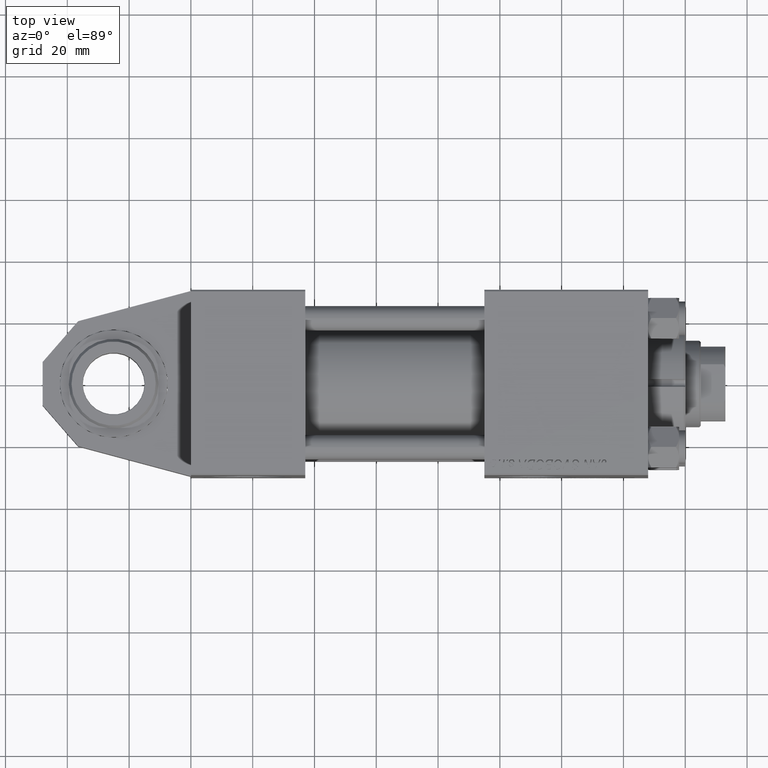
[diagram: clean part render]
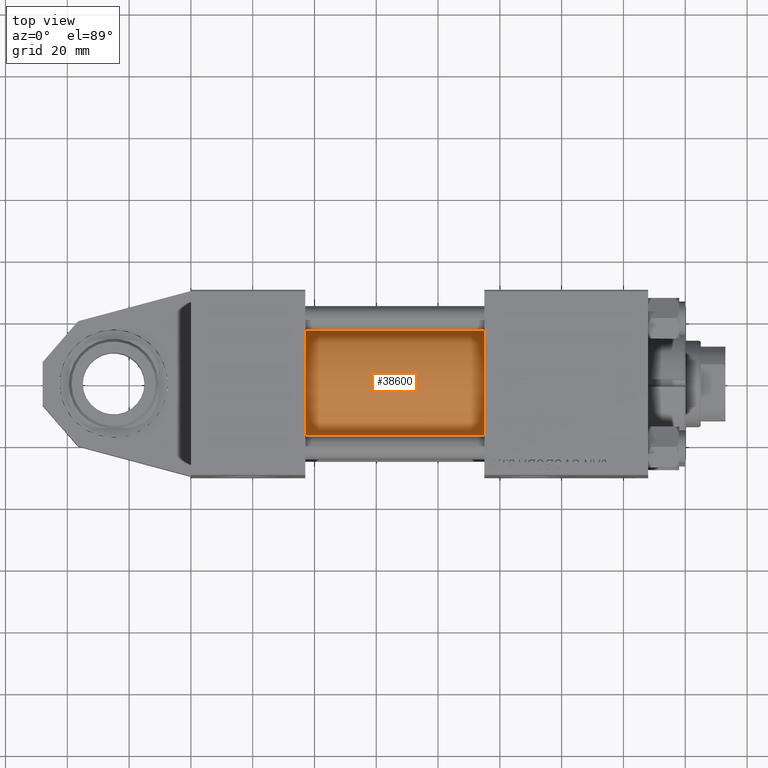
[diagram: same view with one face highlighted and labeled with its STEP entity id]
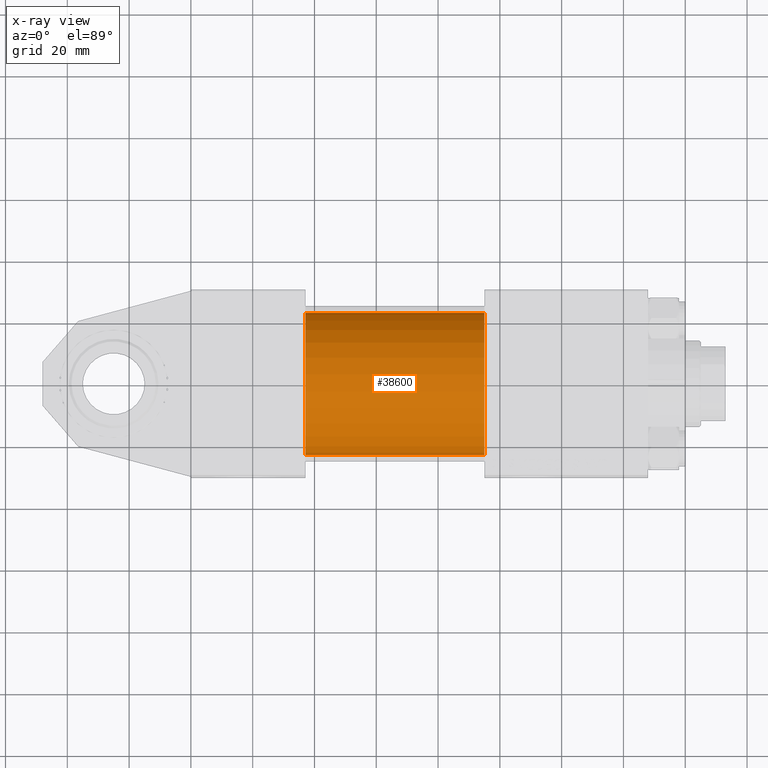
[diagram: x-ray of the same camera — body ghosted, the highlighted face saturated]
A machine part, top view. The second image highlights one B-rep face of the part: STEP entity #38600.
The next image is the same camera in x-ray: the body ghosted, the highlighted face saturated — about 0% of this face is hidden behind the body in this view.
In plain terms, the highlighted cylindrical surface (partial cylindrical patch) has radius 23 mm, axis along (-1, 0, -0).
Its self-contained STEP definition (entity closure, byte-faithful):
#367 = DIRECTION ( 'NONE',  ( 1.000000000000000000, 0.000000000000000000, 0.000000000000000000 ) ) ;
#1067 = LINE ( 'NONE', #8700, #34289 ) ;
#1068 = CIRCLE ( 'NONE', #1878, 23.00000000000000000 ) ;
#1878 = AXIS2_PLACEMENT_3D ( 'NONE', #4187, #367, #15880 ) ;
#3435 = EDGE_CURVE ( 'NONE', #8392, #29407, #21550, .T. ) ;
#4187 = CARTESIAN_POINT ( 'NONE',  ( 95.00000000000000000, -2.602085213965210642E-15, 0.000000000000000000 ) ) ;
#5028 = DIRECTION ( 'NONE',  ( -1.000000000000000000, -0.000000000000000000, -0.000000000000000000 ) ) ;
#5834 = CARTESIAN_POINT ( 'NONE',  ( 95.00000000000000000, -2.602085213965210642E-15, 0.000000000000000000 ) ) ;
#8392 = VERTEX_POINT ( 'NONE', #41111 ) ;
#8700 = CARTESIAN_POINT ( 'NONE',  ( 95.00000000000000000, -2.602085213965210642E-15, 23.00000000000000000 ) ) ;
#8764 = EDGE_CURVE ( 'NONE', #29407, #39567, #18844, .T. ) ;
#9602 = CARTESIAN_POINT ( 'NONE',  ( 95.00000000000000000, 2.146024240737012665E-16, -23.00000000000000000 ) ) ;
#9835 = VERTEX_POINT ( 'NONE', #27964 ) ;
#10069 = CARTESIAN_POINT ( 'NONE',  ( 37.00000000000000000, -2.602085213965210642E-15, 23.00000000000000000 ) ) ;
#10684 = DIRECTION ( 'NONE',  ( 0.000000000000000000, 0.000000000000000000, 1.000000000000000000 ) ) ;
#15710 = EDGE_CURVE ( 'NONE', #8392, #9835, #1068, .T. ) ;
#15880 = DIRECTION ( 'NONE',  ( 0.000000000000000000, 0.000000000000000000, -1.000000000000000000 ) ) ;
#16394 = AXIS2_PLACEMENT_3D ( 'NONE', #26467, #49865, #10684 ) ;
#17016 = VECTOR ( 'NONE', #5028, 1000.000000000000000 ) ;
#18035 = DIRECTION ( 'NONE',  ( -1.000000000000000000, -0.000000000000000000, -0.000000000000000000 ) ) ;
#18844 = CIRCLE ( 'NONE', #16394, 23.00000000000000000 ) ;
#20903 = DIRECTION ( 'NONE',  ( -1.000000000000000000, -0.000000000000000000, -0.000000000000000000 ) ) ;
#21550 = LINE ( 'NONE', #9602, #17016 ) ;
#24026 = ORIENTED_EDGE ( 'NONE', *, *, #8764, .T. ) ;
#24248 = ORIENTED_EDGE ( 'NONE', *, *, #15710, .F. ) ;
#25676 = CYLINDRICAL_SURFACE ( 'NONE', #37545, 23.00000000000000000 ) ;
#25704 = ORIENTED_EDGE ( 'NONE', *, *, #38223, .F. ) ;
#26467 = CARTESIAN_POINT ( 'NONE',  ( 37.00000000000000000, -2.602085213965210642E-15, 0.000000000000000000 ) ) ;
#27964 = CARTESIAN_POINT ( 'NONE',  ( 95.00000000000000000, -2.602085213965210642E-15, 23.00000000000000000 ) ) ;
#29407 = VERTEX_POINT ( 'NONE', #49198 ) ;
#29770 = ORIENTED_EDGE ( 'NONE', *, *, #3435, .T. ) ;
#34289 = VECTOR ( 'NONE', #20903, 1000.000000000000000 ) ;
#36606 = DIRECTION ( 'NONE',  ( 0.000000000000000000, 0.000000000000000000, 1.000000000000000000 ) ) ;
#37545 = AXIS2_PLACEMENT_3D ( 'NONE', #5834, #18035, #36606 ) ;
#38223 = EDGE_CURVE ( 'NONE', #9835, #39567, #1067, .T. ) ;
#38600 = ADVANCED_FACE ( 'NONE', ( #44758 ), #25676, .T. ) ;
#39567 = VERTEX_POINT ( 'NONE', #10069 ) ;
#41111 = CARTESIAN_POINT ( 'NONE',  ( 95.00000000000000000, 2.146024240737012665E-16, -23.00000000000000000 ) ) ;
#44758 = FACE_OUTER_BOUND ( 'NONE', #45016, .T. ) ;
#45016 = EDGE_LOOP ( 'NONE', ( #24248, #29770, #24026, #25704 ) ) ;
#49198 = CARTESIAN_POINT ( 'NONE',  ( 37.00000000000000000, 2.146024240737012665E-16, -23.00000000000000000 ) ) ;
#49865 = DIRECTION ( 'NONE',  ( 1.000000000000000000, -0.000000000000000000, 0.000000000000000000 ) ) ;